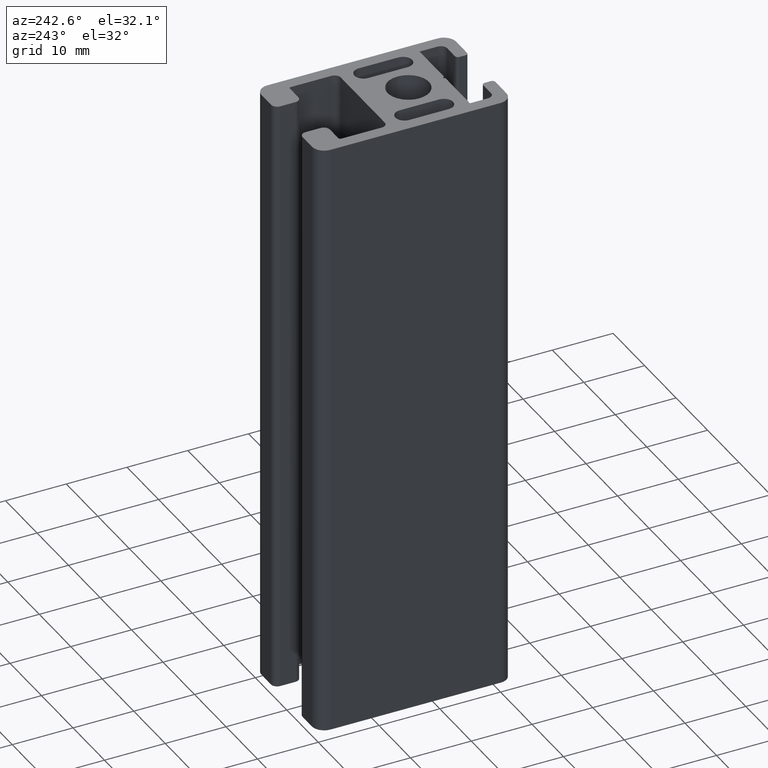
[diagram: clean part render]
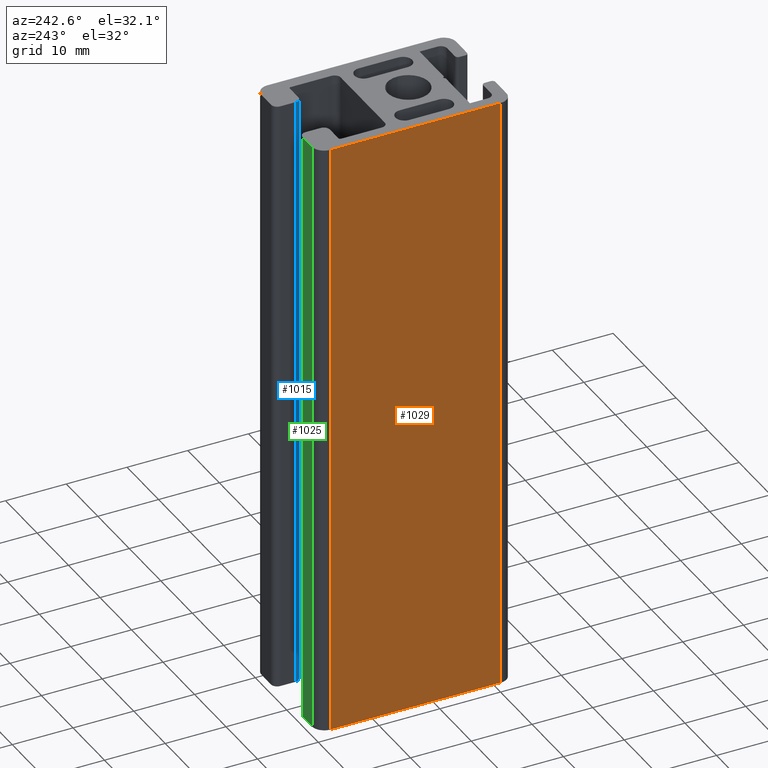
[diagram: same view with three faces highlighted in distinct colors, each labeled with its STEP entity id]
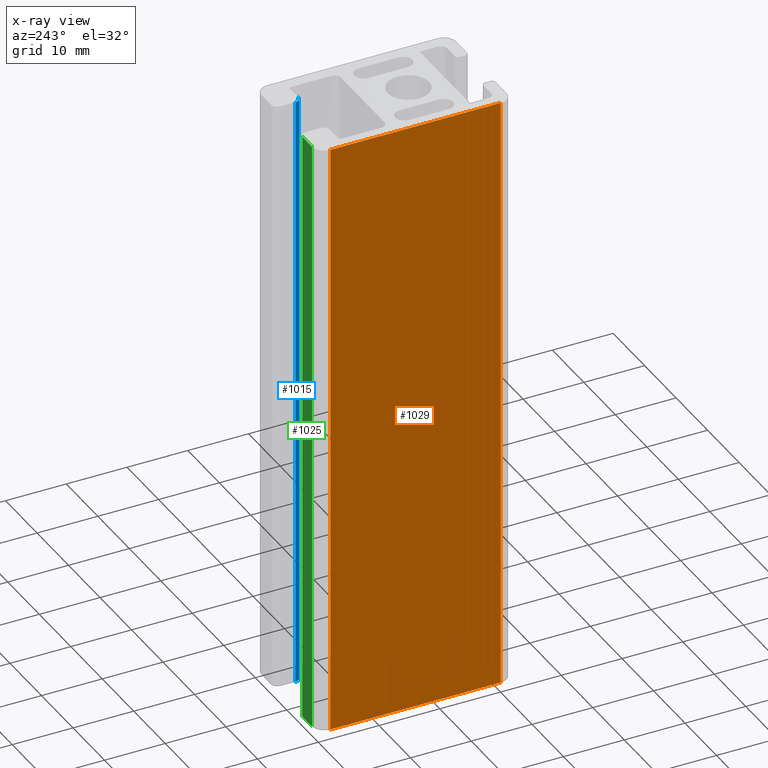
[diagram: x-ray of the same camera — body ghosted, the three highlighted faces saturated]
A machine part, auxiliary view with three faces highlighted in distinct colors.
The next image is the same camera in x-ray (body ghosted, the three faces saturated) — at least one of them is partly hidden behind the body in this view.
Their STEP definitions:

[orange] entity #1029 — the highlighted planar face has unit normal (-1, -0, 0).
#47=PLANE('',#1126);
#96=FACE_OUTER_BOUND('',#152,.T.);
#152=EDGE_LOOP('',(#887,#888,#889,#890));
#255=LINE('',#1710,#358);
#257=LINE('',#1716,#360);
#259=LINE('',#1722,#362);
#260=LINE('',#1723,#363);
#358=VECTOR('',#1401,28.);
#360=VECTOR('',#1407,100.);
#362=VECTOR('',#1413,100.);
#363=VECTOR('',#1414,28.);
#506=VERTEX_POINT('',#1707);
#507=VERTEX_POINT('',#1709);
#509=VERTEX_POINT('',#1715);
#511=VERTEX_POINT('',#1721);
#648=EDGE_CURVE('',#507,#506,#255,.T.);
#651=EDGE_CURVE('',#509,#507,#257,.T.);
#654=EDGE_CURVE('',#511,#506,#259,.T.);
#655=EDGE_CURVE('',#509,#511,#260,.T.);
#887=ORIENTED_EDGE('',*,*,#648,.T.);
#888=ORIENTED_EDGE('',*,*,#654,.F.);
#889=ORIENTED_EDGE('',*,*,#655,.F.);
#890=ORIENTED_EDGE('',*,*,#651,.T.);
#1029=ADVANCED_FACE('',(#96),#47,.T.);
#1126=AXIS2_PLACEMENT_3D('',#1720,#1411,#1412);
#1401=DIRECTION('',(-1.58603289232165E-16,1.,0.));
#1407=DIRECTION('',(0.,0.,1.));
#1411=DIRECTION('center_axis',(-1.,-1.58603289232165E-16,0.));
#1412=DIRECTION('ref_axis',(1.77635683940025E-16,-1.,0.));
#1413=DIRECTION('',(0.,0.,1.));
#1414=DIRECTION('',(-1.58603289232165E-16,1.,0.));
#1707=CARTESIAN_POINT('',(-10.,18.,100.));
#1709=CARTESIAN_POINT('',(-10.,-10.,100.));
#1710=CARTESIAN_POINT('',(-10.,11.,100.));
#1715=CARTESIAN_POINT('',(-10.,-10.,0.));
#1716=CARTESIAN_POINT('',(-10.,-10.,0.));
#1720=CARTESIAN_POINT('Origin',(-10.,18.,0.));
#1721=CARTESIAN_POINT('',(-10.,18.,0.));
#1722=CARTESIAN_POINT('',(-10.,18.,0.));
#1723=CARTESIAN_POINT('',(-10.,11.,0.));

[blue] entity #1015 — the highlighted cylindrical surface (edge-blend (fillet) strip) has radius 1 mm, axis along (0, 0, 1).
#82=FACE_OUTER_BOUND('',#135,.T.);
#135=EDGE_LOOP('',(#785,#786,#787,#788));
#226=LINE('',#1627,#329);
#228=LINE('',#1633,#331);
#329=VECTOR('',#1320,100.);
#331=VECTOR('',#1326,100.);
#396=CIRCLE('',#1098,0.999998004047022);
#397=CIRCLE('',#1099,0.999998004047022);
#478=VERTEX_POINT('',#1624);
#479=VERTEX_POINT('',#1626);
#480=VERTEX_POINT('',#1630);
#481=VERTEX_POINT('',#1632);
#606=EDGE_CURVE('',#479,#478,#226,.T.);
#608=EDGE_CURVE('',#480,#478,#396,.T.);
#609=EDGE_CURVE('',#481,#480,#228,.T.);
#610=EDGE_CURVE('',#479,#481,#397,.T.);
#785=ORIENTED_EDGE('',*,*,#608,.F.);
#786=ORIENTED_EDGE('',*,*,#609,.F.);
#787=ORIENTED_EDGE('',*,*,#610,.F.);
#788=ORIENTED_EDGE('',*,*,#606,.T.);
#975=CYLINDRICAL_SURFACE('',#1097,0.999998004047022);
#1015=ADVANCED_FACE('',(#82),#975,.T.);
#1097=AXIS2_PLACEMENT_3D('',#1629,#1322,#1323);
#1098=AXIS2_PLACEMENT_3D('',#1631,#1324,#1325);
#1099=AXIS2_PLACEMENT_3D('',#1634,#1327,#1328);
#1320=DIRECTION('',(0.,0.,1.));
#1322=DIRECTION('center_axis',(0.,0.,1.));
#1323=DIRECTION('ref_axis',(1.,2.22045048116506E-15,0.));
#1324=DIRECTION('center_axis',(0.,0.,1.));
#1325=DIRECTION('ref_axis',(1.,2.22045048116506E-15,0.));
#1326=DIRECTION('',(0.,0.,1.));
#1327=DIRECTION('center_axis',(0.,0.,-1.));
#1328=DIRECTION('ref_axis',(1.,2.22045048116506E-15,0.));
#1624=CARTESIAN_POINT('',(4.99999800404702,15.5,100.));
#1626=CARTESIAN_POINT('',(4.99999800404702,15.5,0.));
#1627=CARTESIAN_POINT('',(4.99999800404702,15.5,0.));
#1629=CARTESIAN_POINT('Origin',(4.99999800404702,16.499998004047,0.));
#1630=CARTESIAN_POINT('',(4.,16.499998004047,100.));
#1631=CARTESIAN_POINT('Origin',(4.99999800404702,16.499998004047,100.));
#1632=CARTESIAN_POINT('',(4.,16.499998004047,0.));
#1633=CARTESIAN_POINT('',(4.,16.499998004047,0.));
#1634=CARTESIAN_POINT('Origin',(4.99999800404702,16.499998004047,0.));

[green] entity #1025 — the highlighted planar face has unit normal (0, 1, 0).
#44=PLANE('',#1117);
#92=FACE_OUTER_BOUND('',#145,.T.);
#145=EDGE_LOOP('',(#825,#826,#827,#828));
#234=LINE('',#1655,#337);
#248=LINE('',#1691,#351);
#249=LINE('',#1693,#352);
#250=LINE('',#1694,#353);
#337=VECTOR('',#1348,100.);
#351=VECTOR('',#1384,3.00000199595299);
#352=VECTOR('',#1385,100.);
#353=VECTOR('',#1386,3.00000199595299);
#487=VERTEX_POINT('',#1649);
#489=VERTEX_POINT('',#1653);
#500=VERTEX_POINT('',#1690);
#501=VERTEX_POINT('',#1692);
#620=EDGE_CURVE('',#487,#489,#234,.T.);
#638=EDGE_CURVE('',#500,#489,#248,.T.);
#639=EDGE_CURVE('',#500,#501,#249,.T.);
#640=EDGE_CURVE('',#501,#487,#250,.T.);
#825=ORIENTED_EDGE('',*,*,#620,.T.);
#826=ORIENTED_EDGE('',*,*,#638,.F.);
#827=ORIENTED_EDGE('',*,*,#639,.T.);
#828=ORIENTED_EDGE('',*,*,#640,.T.);
#1025=ADVANCED_FACE('',(#92),#44,.T.);
#1117=AXIS2_PLACEMENT_3D('',#1689,#1382,#1383);
#1348=DIRECTION('',(0.,0.,-1.));
#1382=DIRECTION('center_axis',(0.,1.,0.));
#1383=DIRECTION('ref_axis',(-1.,0.,0.));
#1384=DIRECTION('',(1.,0.,0.));
#1385=DIRECTION('',(0.,0.,1.));
#1386=DIRECTION('',(1.,0.,0.));
#1649=CARTESIAN_POINT('',(-4.99999800404701,20.,100.));
#1653=CARTESIAN_POINT('',(-4.99999800404701,20.,0.));
#1655=CARTESIAN_POINT('',(-4.99999800404702,20.,0.));
#1689=CARTESIAN_POINT('Origin',(8.,20.,0.));
#1690=CARTESIAN_POINT('',(-8.00000000000001,20.,0.));
#1691=CARTESIAN_POINT('',(4.,20.,0.));
#1692=CARTESIAN_POINT('',(-8.00000000000001,20.,100.));
#1693=CARTESIAN_POINT('',(-8.00000000000001,20.,0.));
#1694=CARTESIAN_POINT('',(4.,20.,100.));